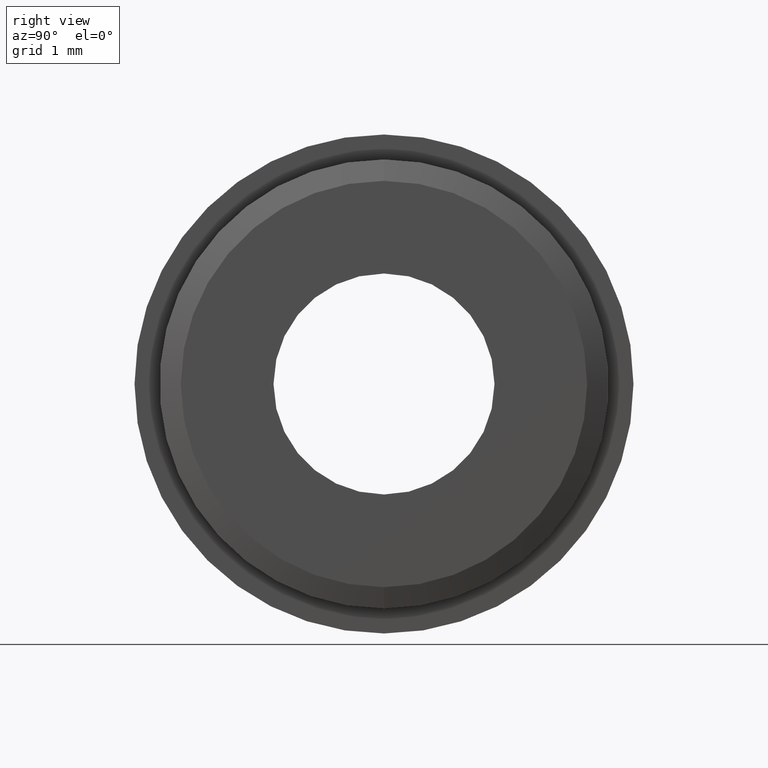
[diagram: clean part render]
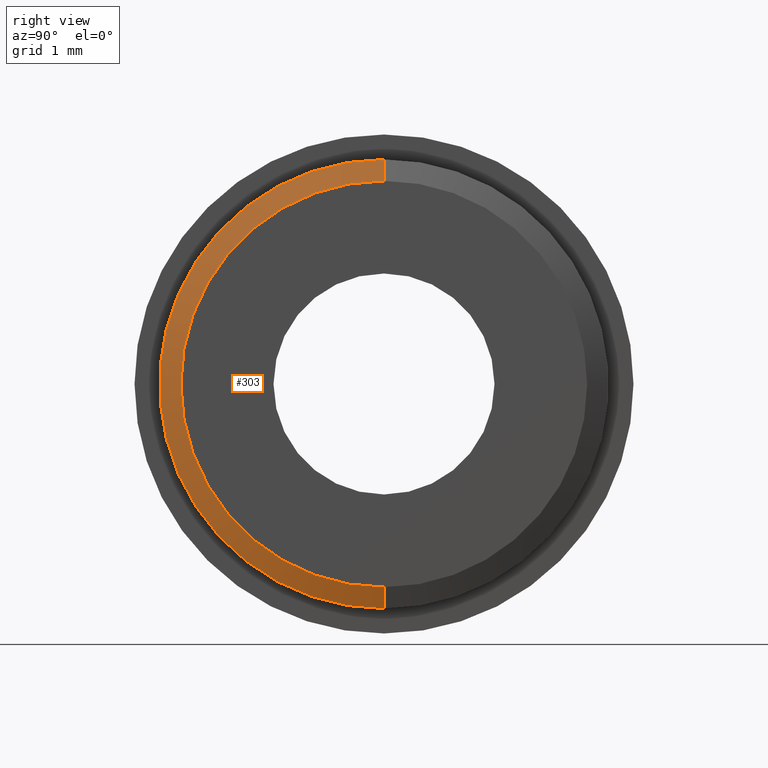
[diagram: same view with one face highlighted and labeled with its STEP entity id]
A machine part, right view. The second image highlights one B-rep face of the part: STEP entity #303.
In plain terms, the highlighted conical surface has half-angle 71.565 deg.
Its self-contained STEP definition (entity closure, byte-faithful):
#3 = EDGE_CURVE ( 'NONE', #192, #632, #313, .T. ) ;
#26 = ORIENTED_EDGE ( 'NONE', *, *, #599, .F. ) ;
#42 = ORIENTED_EDGE ( 'NONE', *, *, #700, .T. ) ;
#55 = EDGE_LOOP ( 'NONE', ( #26, #42, #666, #472 ) ) ;
#77 = CARTESIAN_POINT ( 'NONE',  ( 2.200000000000000600, 3.490243377569956600E-016, -2.850000000000000100 ) ) ;
#111 = VERTEX_POINT ( 'NONE', #112 ) ;
#112 = CARTESIAN_POINT ( 'NONE',  ( 2.100000000000001000, 3.857637417314162700E-016, -3.149999999999999900 ) ) ;
#157 = DIRECTION ( 'NONE',  ( -0.3162277660168362200, 0.0000000000000000000, 0.9486832980505144300 ) ) ;
#160 = FACE_OUTER_BOUND ( 'NONE', #55, .T. ) ;
#180 = EDGE_CURVE ( 'NONE', #111, #632, #704, .T. ) ;
#181 = DIRECTION ( 'NONE',  ( 0.0000000000000000000, 0.0000000000000000000, 1.000000000000000000 ) ) ;
#187 = DIRECTION ( 'NONE',  ( -1.000000000000000000, -0.0000000000000000000, -0.0000000000000000000 ) ) ;
#190 = CIRCLE ( 'NONE', #490, 2.850000000000000100 ) ;
#192 = VERTEX_POINT ( 'NONE', #604 ) ;
#213 = DIRECTION ( 'NONE',  ( -1.000000000000000000, -0.0000000000000000000, -0.0000000000000000000 ) ) ;
#220 = LINE ( 'NONE', #77, #654 ) ;
#289 = VECTOR ( 'NONE', #157, 999.9999999999998900 ) ;
#303 = ADVANCED_FACE ( 'NONE', ( #160 ), #423, .T. ) ;
#313 = LINE ( 'NONE', #718, #289 ) ;
#338 = CARTESIAN_POINT ( 'NONE',  ( 2.200000000000000600, 3.673940397442059900E-016, -2.850000000000000100 ) ) ;
#355 = CARTESIAN_POINT ( 'NONE',  ( 2.100000000000001000, 0.0000000000000000000, 3.149999999999999900 ) ) ;
#383 = DIRECTION ( 'NONE',  ( 0.0000000000000000000, 0.0000000000000000000, 1.000000000000000000 ) ) ;
#407 = CARTESIAN_POINT ( 'NONE',  ( 2.200000000000000600, 0.0000000000000000000, 0.0000000000000000000 ) ) ;
#423 = CONICAL_SURFACE ( 'NONE', #558, 2.850000000000000100, 1.249045772398256200 ) ;
#460 = DIRECTION ( 'NONE',  ( -0.3162277660168362200, 1.161801964362117100E-016, -0.9486832980505144300 ) ) ;
#472 = ORIENTED_EDGE ( 'NONE', *, *, #180, .F. ) ;
#490 = AXIS2_PLACEMENT_3D ( 'NONE', #669, #213, #383 ) ;
#558 = AXIS2_PLACEMENT_3D ( 'NONE', #407, #629, #563 ) ;
#563 = DIRECTION ( 'NONE',  ( 0.0000000000000000000, 0.0000000000000000000, 1.000000000000000000 ) ) ;
#599 = EDGE_CURVE ( 'NONE', #701, #111, #220, .T. ) ;
#604 = CARTESIAN_POINT ( 'NONE',  ( 2.200000000000000600, 0.0000000000000000000, 2.850000000000000100 ) ) ;
#629 = DIRECTION ( 'NONE',  ( -1.000000000000000000, -0.0000000000000000000, -0.0000000000000000000 ) ) ;
#632 = VERTEX_POINT ( 'NONE', #355 ) ;
#654 = VECTOR ( 'NONE', #460, 999.9999999999998900 ) ;
#666 = ORIENTED_EDGE ( 'NONE', *, *, #3, .T. ) ;
#669 = CARTESIAN_POINT ( 'NONE',  ( 2.200000000000000600, 0.0000000000000000000, 0.0000000000000000000 ) ) ;
#700 = EDGE_CURVE ( 'NONE', #701, #192, #190, .T. ) ;
#701 = VERTEX_POINT ( 'NONE', #338 ) ;
#702 = AXIS2_PLACEMENT_3D ( 'NONE', #731, #187, #181 ) ;
#704 = CIRCLE ( 'NONE', #702, 3.149999999999999900 ) ;
#718 = CARTESIAN_POINT ( 'NONE',  ( 2.200000000000000600, 0.0000000000000000000, 2.850000000000000100 ) ) ;
#731 = CARTESIAN_POINT ( 'NONE',  ( 2.100000000000001000, 0.0000000000000000000, 0.0000000000000000000 ) ) ;